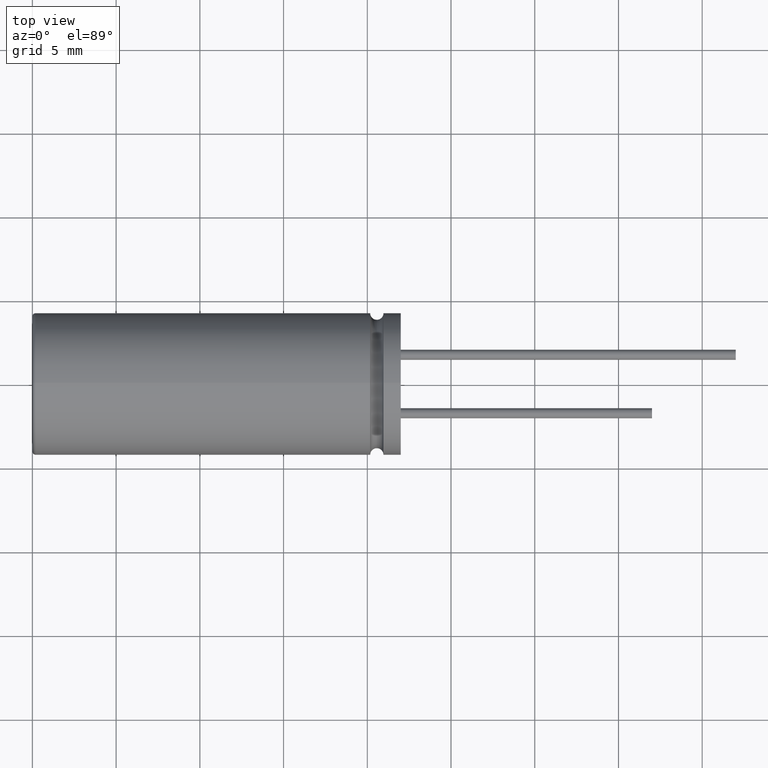
[diagram: clean part render]
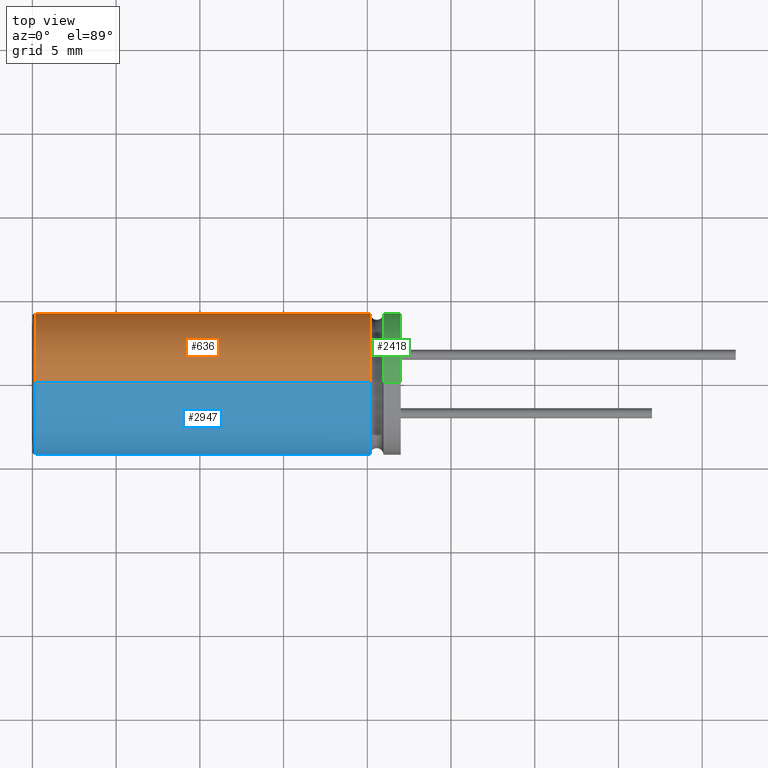
[diagram: same view with three faces highlighted in distinct colors, each labeled with its STEP entity id]
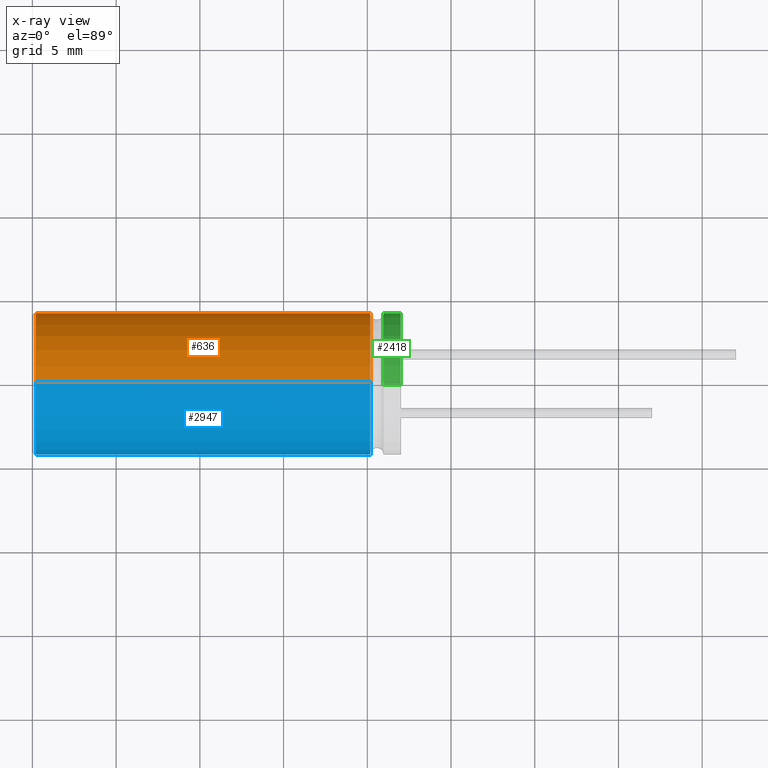
[diagram: x-ray of the same camera — body ghosted, the three highlighted faces saturated]
A machine part, top view with three faces highlighted in distinct colors.
The next image is the same camera in x-ray (body ghosted, the three faces saturated) — at least one of them is partly hidden behind the body in this view.
Their STEP definitions:

[orange] entity #636 — the highlighted cylindrical surface (partial cylindrical patch) has radius 4.25 mm, axis along (-1, -0, -0).
#123 = CIRCLE ( 'NONE', #585, 4.250000000000000900 ) ;
#124 = EDGE_CURVE ( 'NONE', #2575, #1084, #1587, .T. ) ;
#237 = DIRECTION ( 'NONE',  ( 1.000000000000000000, 0.0000000000000000000, 0.0000000000000000000 ) ) ;
#280 = DIRECTION ( 'NONE',  ( 0.0000000000000000000, 0.0000000000000000000, -1.000000000000000000 ) ) ;
#304 = EDGE_CURVE ( 'NONE', #700, #1291, #123, .T. ) ;
#521 = VECTOR ( 'NONE', #2986, 1000.000000000000000 ) ;
#585 = AXIS2_PLACEMENT_3D ( 'NONE', #1574, #3205, #280 ) ;
#636 = ADVANCED_FACE ( 'NONE', ( #1343 ), #1962, .T. ) ;
#700 = VERTEX_POINT ( 'NONE', #3307 ) ;
#1084 = VERTEX_POINT ( 'NONE', #2782 ) ;
#1105 = ORIENTED_EDGE ( 'NONE', *, *, #1785, .T. ) ;
#1147 = EDGE_CURVE ( 'NONE', #1291, #1084, #1180, .T. ) ;
#1180 = LINE ( 'NONE', #2271, #3364 ) ;
#1189 = ORIENTED_EDGE ( 'NONE', *, *, #124, .T. ) ;
#1266 = CARTESIAN_POINT ( 'NONE',  ( 20.17278000000000300, 5.204748896376250700E-016, 4.250000000000000000 ) ) ;
#1291 = VERTEX_POINT ( 'NONE', #1266 ) ;
#1343 = FACE_OUTER_BOUND ( 'NONE', #1491, .T. ) ;
#1434 = DIRECTION ( 'NONE',  ( 0.0000000000000000000, 0.0000000000000000000, 1.000000000000000000 ) ) ;
#1491 = EDGE_LOOP ( 'NONE', ( #1881, #1105, #1189, #2068 ) ) ;
#1574 = CARTESIAN_POINT ( 'NONE',  ( 20.17277999999999900, 0.0000000000000000000, 0.0000000000000000000 ) ) ;
#1587 = CIRCLE ( 'NONE', #2711, 4.250000000000000000 ) ;
#1785 = EDGE_CURVE ( 'NONE', #700, #2575, #2281, .T. ) ;
#1881 = ORIENTED_EDGE ( 'NONE', *, *, #304, .F. ) ;
#1960 = DIRECTION ( 'NONE',  ( -1.000000000000000000, -0.0000000000000000000, -0.0000000000000000000 ) ) ;
#1962 = CYLINDRICAL_SURFACE ( 'NONE', #2214, 4.250000000000000000 ) ;
#2068 = ORIENTED_EDGE ( 'NONE', *, *, #1147, .F. ) ;
#2187 = CARTESIAN_POINT ( 'NONE',  ( 22.00000000000000000, 5.204748896376250700E-016, -4.250000000000000000 ) ) ;
#2214 = AXIS2_PLACEMENT_3D ( 'NONE', #2221, #1960, #1434 ) ;
#2221 = CARTESIAN_POINT ( 'NONE',  ( 22.00000000000000000, 0.0000000000000000000, 0.0000000000000000000 ) ) ;
#2271 = CARTESIAN_POINT ( 'NONE',  ( 22.00000000000000000, 0.0000000000000000000, 4.250000000000000000 ) ) ;
#2281 = LINE ( 'NONE', #2187, #521 ) ;
#2296 = DIRECTION ( 'NONE',  ( -1.000000000000000000, -0.0000000000000000000, -0.0000000000000000000 ) ) ;
#2495 = CARTESIAN_POINT ( 'NONE',  ( 0.1999999999999987900, 0.0000000000000000000, -4.250000000000000000 ) ) ;
#2575 = VERTEX_POINT ( 'NONE', #2495 ) ;
#2635 = CARTESIAN_POINT ( 'NONE',  ( 0.1999999999999987900, 0.0000000000000000000, 0.0000000000000000000 ) ) ;
#2711 = AXIS2_PLACEMENT_3D ( 'NONE', #2635, #237, #2852 ) ;
#2782 = CARTESIAN_POINT ( 'NONE',  ( 0.1999999999999987900, 5.204748896376250700E-016, 4.250000000000000000 ) ) ;
#2852 = DIRECTION ( 'NONE',  ( 0.0000000000000000000, 0.0000000000000000000, -1.000000000000000000 ) ) ;
#2986 = DIRECTION ( 'NONE',  ( -1.000000000000000000, -0.0000000000000000000, -0.0000000000000000000 ) ) ;
#3205 = DIRECTION ( 'NONE',  ( 1.000000000000000000, -0.0000000000000000000, -0.0000000000000000000 ) ) ;
#3307 = CARTESIAN_POINT ( 'NONE',  ( 20.17278000000000300, 0.0000000000000000000, -4.250000000000000000 ) ) ;
#3364 = VECTOR ( 'NONE', #2296, 1000.000000000000000 ) ;

[blue] entity #2947 — the highlighted cylindrical surface (partial cylindrical patch) has radius 4.25 mm, axis along (-1, -0, -0).
#98 = ORIENTED_EDGE ( 'NONE', *, *, #1147, .T. ) ;
#176 = EDGE_CURVE ( 'NONE', #1291, #700, #3131, .T. ) ;
#225 = DIRECTION ( 'NONE',  ( 0.0000000000000000000, 0.0000000000000000000, -1.000000000000000000 ) ) ;
#274 = DIRECTION ( 'NONE',  ( -1.000000000000000000, -0.0000000000000000000, -0.0000000000000000000 ) ) ;
#388 = AXIS2_PLACEMENT_3D ( 'NONE', #2108, #274, #1955 ) ;
#435 = CYLINDRICAL_SURFACE ( 'NONE', #388, 4.250000000000000000 ) ;
#521 = VECTOR ( 'NONE', #2986, 1000.000000000000000 ) ;
#567 = CIRCLE ( 'NONE', #2936, 4.250000000000000000 ) ;
#672 = EDGE_LOOP ( 'NONE', ( #2375, #742, #98, #1722 ) ) ;
#700 = VERTEX_POINT ( 'NONE', #3307 ) ;
#742 = ORIENTED_EDGE ( 'NONE', *, *, #176, .F. ) ;
#981 = CARTESIAN_POINT ( 'NONE',  ( 0.1999999999999987900, 0.0000000000000000000, 0.0000000000000000000 ) ) ;
#1084 = VERTEX_POINT ( 'NONE', #2782 ) ;
#1147 = EDGE_CURVE ( 'NONE', #1291, #1084, #1180, .T. ) ;
#1180 = LINE ( 'NONE', #2271, #3364 ) ;
#1266 = CARTESIAN_POINT ( 'NONE',  ( 20.17278000000000300, 5.204748896376250700E-016, 4.250000000000000000 ) ) ;
#1291 = VERTEX_POINT ( 'NONE', #1266 ) ;
#1722 = ORIENTED_EDGE ( 'NONE', *, *, #2728, .T. ) ;
#1780 = DIRECTION ( 'NONE',  ( 1.000000000000000000, -0.0000000000000000000, -0.0000000000000000000 ) ) ;
#1785 = EDGE_CURVE ( 'NONE', #700, #2575, #2281, .T. ) ;
#1863 = FACE_OUTER_BOUND ( 'NONE', #672, .T. ) ;
#1883 = AXIS2_PLACEMENT_3D ( 'NONE', #3375, #1780, #225 ) ;
#1955 = DIRECTION ( 'NONE',  ( 0.0000000000000000000, 0.0000000000000000000, 1.000000000000000000 ) ) ;
#2108 = CARTESIAN_POINT ( 'NONE',  ( 22.00000000000000000, 0.0000000000000000000, 0.0000000000000000000 ) ) ;
#2187 = CARTESIAN_POINT ( 'NONE',  ( 22.00000000000000000, 5.204748896376250700E-016, -4.250000000000000000 ) ) ;
#2271 = CARTESIAN_POINT ( 'NONE',  ( 22.00000000000000000, 0.0000000000000000000, 4.250000000000000000 ) ) ;
#2281 = LINE ( 'NONE', #2187, #521 ) ;
#2296 = DIRECTION ( 'NONE',  ( -1.000000000000000000, -0.0000000000000000000, -0.0000000000000000000 ) ) ;
#2297 = DIRECTION ( 'NONE',  ( 1.000000000000000000, 0.0000000000000000000, 0.0000000000000000000 ) ) ;
#2321 = DIRECTION ( 'NONE',  ( 0.0000000000000000000, 0.0000000000000000000, -1.000000000000000000 ) ) ;
#2375 = ORIENTED_EDGE ( 'NONE', *, *, #1785, .F. ) ;
#2495 = CARTESIAN_POINT ( 'NONE',  ( 0.1999999999999987900, 0.0000000000000000000, -4.250000000000000000 ) ) ;
#2575 = VERTEX_POINT ( 'NONE', #2495 ) ;
#2728 = EDGE_CURVE ( 'NONE', #1084, #2575, #567, .T. ) ;
#2782 = CARTESIAN_POINT ( 'NONE',  ( 0.1999999999999987900, 5.204748896376250700E-016, 4.250000000000000000 ) ) ;
#2936 = AXIS2_PLACEMENT_3D ( 'NONE', #981, #2297, #2321 ) ;
#2947 = ADVANCED_FACE ( 'NONE', ( #1863 ), #435, .T. ) ;
#2986 = DIRECTION ( 'NONE',  ( -1.000000000000000000, -0.0000000000000000000, -0.0000000000000000000 ) ) ;
#3131 = CIRCLE ( 'NONE', #1883, 4.250000000000000900 ) ;
#3307 = CARTESIAN_POINT ( 'NONE',  ( 20.17278000000000300, 0.0000000000000000000, -4.250000000000000000 ) ) ;
#3364 = VECTOR ( 'NONE', #2296, 1000.000000000000000 ) ;
#3375 = CARTESIAN_POINT ( 'NONE',  ( 20.17277999999999900, 0.0000000000000000000, 0.0000000000000000000 ) ) ;

[green] entity #2418 — the highlighted cylindrical surface (partial cylindrical patch) has radius 4.25 mm, axis along (-1, -0, -0).
#165 = LINE ( 'NONE', #2719, #1576 ) ;
#421 = EDGE_CURVE ( 'NONE', #2424, #1440, #165, .T. ) ;
#568 = CARTESIAN_POINT ( 'NONE',  ( 22.00000000000000000, 0.0000000000000000000, 0.0000000000000000000 ) ) ;
#572 = LINE ( 'NONE', #1842, #3280 ) ;
#722 = DIRECTION ( 'NONE',  ( 0.0000000000000000000, 0.0000000000000000000, -1.000000000000000000 ) ) ;
#723 = EDGE_CURVE ( 'NONE', #1440, #1388, #1016, .T. ) ;
#879 = EDGE_CURVE ( 'NONE', #1807, #1388, #572, .T. ) ;
#945 = DIRECTION ( 'NONE',  ( 1.000000000000000000, 0.0000000000000000000, 0.0000000000000000000 ) ) ;
#1012 = ORIENTED_EDGE ( 'NONE', *, *, #723, .T. ) ;
#1016 = CIRCLE ( 'NONE', #1779, 4.250000000000000000 ) ;
#1190 = CYLINDRICAL_SURFACE ( 'NONE', #1634, 4.250000000000000000 ) ;
#1272 = ORIENTED_EDGE ( 'NONE', *, *, #421, .T. ) ;
#1388 = VERTEX_POINT ( 'NONE', #2148 ) ;
#1440 = VERTEX_POINT ( 'NONE', #2656 ) ;
#1576 = VECTOR ( 'NONE', #3251, 1000.000000000000000 ) ;
#1580 = ORIENTED_EDGE ( 'NONE', *, *, #879, .F. ) ;
#1634 = AXIS2_PLACEMENT_3D ( 'NONE', #568, #2932, #2399 ) ;
#1779 = AXIS2_PLACEMENT_3D ( 'NONE', #3032, #3294, #2251 ) ;
#1807 = VERTEX_POINT ( 'NONE', #1988 ) ;
#1842 = CARTESIAN_POINT ( 'NONE',  ( 22.00000000000000000, 0.0000000000000000000, 4.250000000000000000 ) ) ;
#1847 = CIRCLE ( 'NONE', #2783, 4.250000000000000000 ) ;
#1971 = CARTESIAN_POINT ( 'NONE',  ( 22.00000000000000000, 0.0000000000000000000, 0.0000000000000000000 ) ) ;
#1988 = CARTESIAN_POINT ( 'NONE',  ( 22.00000000000000000, 0.0000000000000000000, 4.250000000000000000 ) ) ;
#2114 = EDGE_CURVE ( 'NONE', #2424, #1807, #1847, .T. ) ;
#2148 = CARTESIAN_POINT ( 'NONE',  ( 20.96599999999999800, 0.0000000000000000000, 4.250000000000000000 ) ) ;
#2251 = DIRECTION ( 'NONE',  ( 0.0000000000000000000, 0.0000000000000000000, -1.000000000000000000 ) ) ;
#2358 = ORIENTED_EDGE ( 'NONE', *, *, #2114, .F. ) ;
#2374 = DIRECTION ( 'NONE',  ( -1.000000000000000000, -0.0000000000000000000, -0.0000000000000000000 ) ) ;
#2399 = DIRECTION ( 'NONE',  ( 0.0000000000000000000, 0.0000000000000000000, 1.000000000000000000 ) ) ;
#2418 = ADVANCED_FACE ( 'NONE', ( #2459 ), #1190, .T. ) ;
#2424 = VERTEX_POINT ( 'NONE', #3211 ) ;
#2459 = FACE_OUTER_BOUND ( 'NONE', #3182, .T. ) ;
#2656 = CARTESIAN_POINT ( 'NONE',  ( 20.96599999999999800, 5.204748896376250700E-016, -4.250000000000000000 ) ) ;
#2719 = CARTESIAN_POINT ( 'NONE',  ( 22.00000000000000000, 5.204748896376250700E-016, -4.250000000000000000 ) ) ;
#2783 = AXIS2_PLACEMENT_3D ( 'NONE', #1971, #945, #722 ) ;
#2932 = DIRECTION ( 'NONE',  ( -1.000000000000000000, -0.0000000000000000000, -0.0000000000000000000 ) ) ;
#3032 = CARTESIAN_POINT ( 'NONE',  ( 20.96599999999999800, 0.0000000000000000000, 0.0000000000000000000 ) ) ;
#3182 = EDGE_LOOP ( 'NONE', ( #2358, #1272, #1012, #1580 ) ) ;
#3211 = CARTESIAN_POINT ( 'NONE',  ( 22.00000000000000000, 5.204748896376250700E-016, -4.250000000000000000 ) ) ;
#3251 = DIRECTION ( 'NONE',  ( -1.000000000000000000, -0.0000000000000000000, -0.0000000000000000000 ) ) ;
#3280 = VECTOR ( 'NONE', #2374, 1000.000000000000000 ) ;
#3294 = DIRECTION ( 'NONE',  ( 1.000000000000000000, -0.0000000000000000000, -0.0000000000000000000 ) ) ;